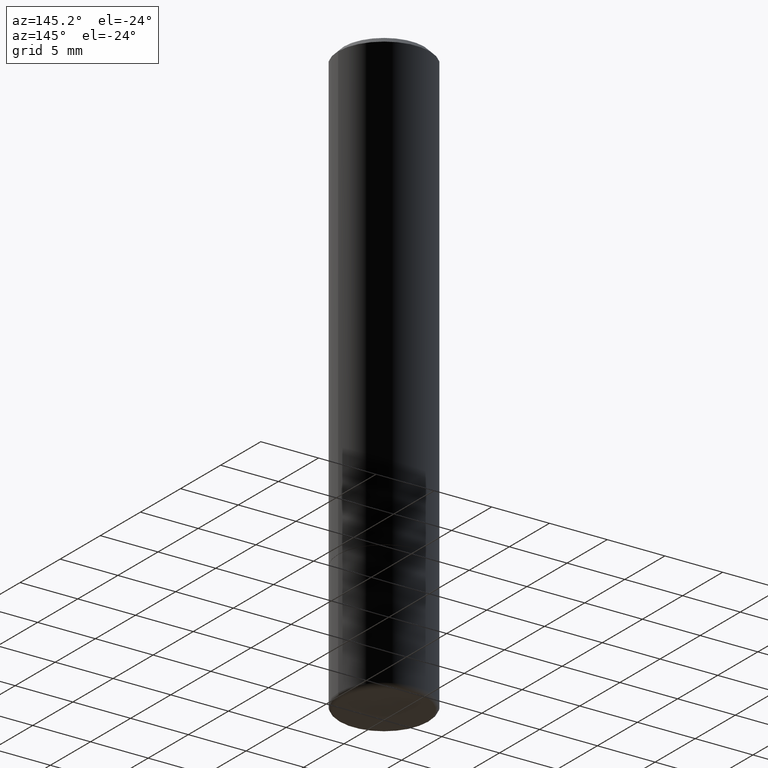
[diagram: clean part render]
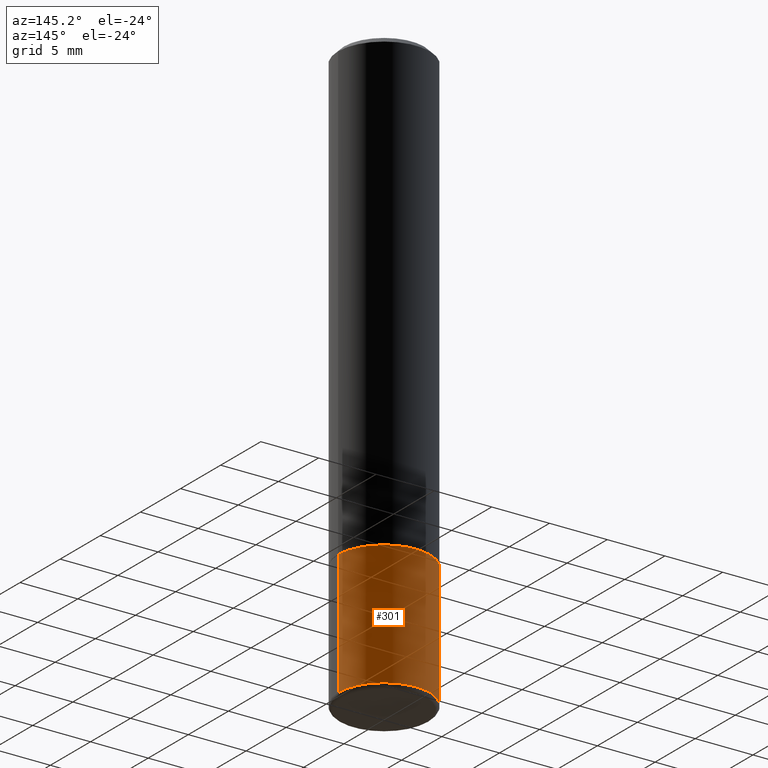
[diagram: same view with one face highlighted and labeled with its STEP entity id]
A machine part, auxiliary view. The second image highlights one B-rep face of the part: STEP entity #301.
In plain terms, the highlighted cylindrical surface (partial cylindrical patch) has radius 3.9688 mm, axis along (-0, 0, 1).
Its self-contained STEP definition (entity closure, byte-faithful):
#1 = CARTESIAN_POINT ( 'NONE',  ( 0.1562500000000000000, -6.546527510330894763E-15, -1.562500000000000000 ) ) ;
#30 = AXIS2_PLACEMENT_3D ( 'NONE', #220, #147, #46 ) ;
#38 = LINE ( 'NONE', #381, #87 ) ;
#45 = CARTESIAN_POINT ( 'NONE',  ( 0.1562500000000000000, -1.091087918388479174E-15, 7.619026212181150377E-30 ) ) ;
#46 = DIRECTION ( 'NONE',  ( 1.000000000000000000, -6.982962677686266711E-15, 4.876176775795936353E-29 ) ) ;
#48 = DIRECTION ( 'NONE',  ( -2.445468806185136597E-29, 3.491481338843145583E-15, 1.000000000000000000 ) ) ;
#51 = DIRECTION ( 'NONE',  ( -2.445468806185136597E-29, 3.491481338843145583E-15, 1.000000000000000000 ) ) ;
#57 = CIRCLE ( 'NONE', #111, 0.1562500000000000000 ) ;
#86 = FACE_OUTER_BOUND ( 'NONE', #238, .T. ) ;
#87 = VECTOR ( 'NONE', #405, 39.37007874015748143 ) ;
#111 = AXIS2_PLACEMENT_3D ( 'NONE', #251, #48, #189 ) ;
#118 = ORIENTED_EDGE ( 'NONE', *, *, #168, .T. ) ;
#147 = DIRECTION ( 'NONE',  ( -2.445468806185136597E-29, 3.491481338843145583E-15, 1.000000000000000000 ) ) ;
#151 = LINE ( 'NONE', #45, #259 ) ;
#168 = EDGE_CURVE ( 'NONE', #221, #343, #38, .T. ) ;
#174 = VERTEX_POINT ( 'NONE', #1 ) ;
#188 = CYLINDRICAL_SURFACE ( 'NONE', #30, 0.1562500000000000000 ) ;
#189 = DIRECTION ( 'NONE',  ( 1.000000000000000000, -6.982962677686269077E-15, 0.000000000000000000 ) ) ;
#220 = CARTESIAN_POINT ( 'NONE',  ( 0.000000000000000000, 0.000000000000000000, 0.000000000000000000 ) ) ;
#221 = VERTEX_POINT ( 'NONE', #240 ) ;
#238 = EDGE_LOOP ( 'NONE', ( #270, #118, #253, #345 ) ) ;
#240 = CARTESIAN_POINT ( 'NONE',  ( -0.1562500000000000000, -5.820367432978486362E-15, -1.984999999999999654 ) ) ;
#247 = CARTESIAN_POINT ( 'NONE',  ( 0.1562500000000000000, -8.021678375992122076E-15, -1.984999999999999654 ) ) ;
#251 = CARTESIAN_POINT ( 'NONE',  ( 4.854255580277495315E-29, -6.930590457603642903E-15, -1.984999999999999654 ) ) ;
#253 = ORIENTED_EDGE ( 'NONE', *, *, #382, .F. ) ;
#259 = VECTOR ( 'NONE', #395, 39.37007874015748143 ) ;
#270 = ORIENTED_EDGE ( 'NONE', *, *, #434, .T. ) ;
#286 = CARTESIAN_POINT ( 'NONE',  ( 3.821045009664275932E-29, -5.455439591942415589E-15, -1.562500000000000000 ) ) ;
#301 = ADVANCED_FACE ( 'NONE', ( #86 ), #188, .T. ) ;
#339 = VERTEX_POINT ( 'NONE', #247 ) ;
#341 = AXIS2_PLACEMENT_3D ( 'NONE', #286, #51, #359 ) ;
#343 = VERTEX_POINT ( 'NONE', #426 ) ;
#345 = ORIENTED_EDGE ( 'NONE', *, *, #411, .F. ) ;
#359 = DIRECTION ( 'NONE',  ( 1.000000000000000000, -6.982962677686269077E-15, 0.000000000000000000 ) ) ;
#381 = CARTESIAN_POINT ( 'NONE',  ( -0.1562500000000000000, 1.110223024625156540E-15, -7.685836078523291160E-30 ) ) ;
#382 = EDGE_CURVE ( 'NONE', #174, #343, #407, .T. ) ;
#395 = DIRECTION ( 'NONE',  ( -2.445468806185136877E-29, 3.491481338843145188E-15, 1.000000000000000000 ) ) ;
#405 = DIRECTION ( 'NONE',  ( -2.445468806185136877E-29, 3.491481338843145188E-15, 1.000000000000000000 ) ) ;
#407 = CIRCLE ( 'NONE', #341, 0.1562500000000000000 ) ;
#411 = EDGE_CURVE ( 'NONE', #339, #174, #151, .T. ) ;
#426 = CARTESIAN_POINT ( 'NONE',  ( -0.1562500000000000000, -5.082792000147872311E-15, -1.562500000000000000 ) ) ;
#434 = EDGE_CURVE ( 'NONE', #339, #221, #57, .T. ) ;